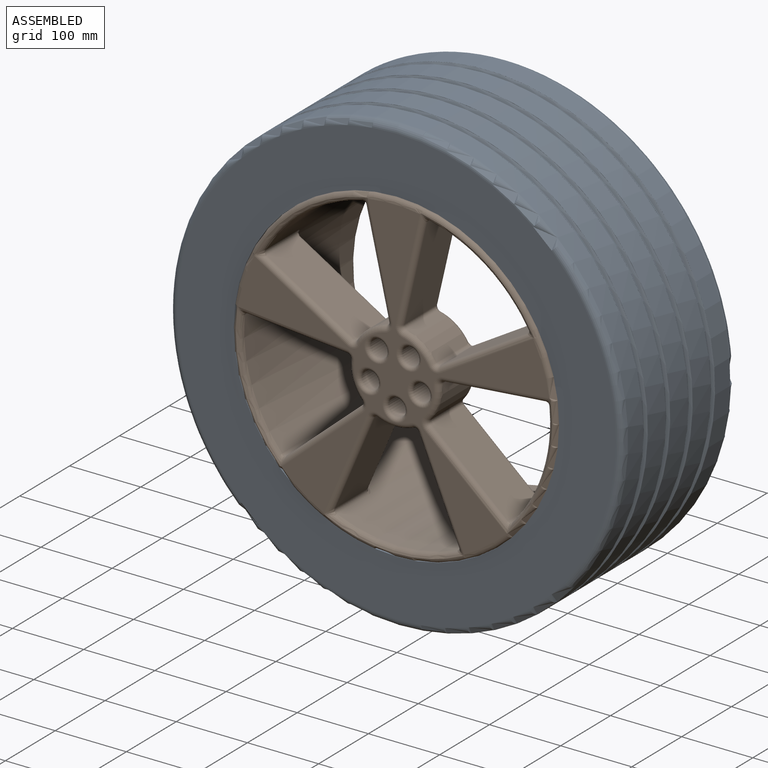
[diagram: assembled view]
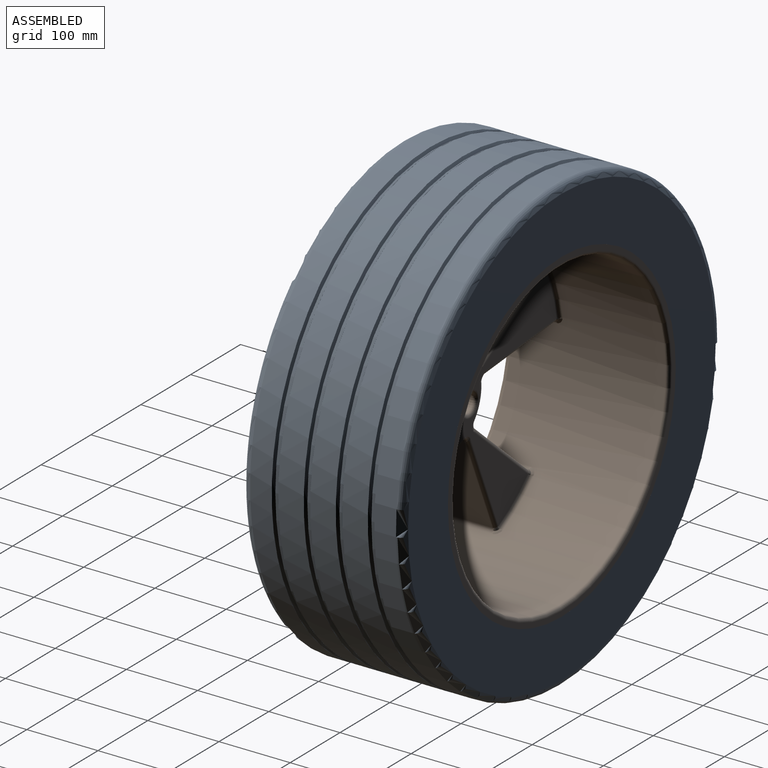
[diagram: assembled view, second angle]
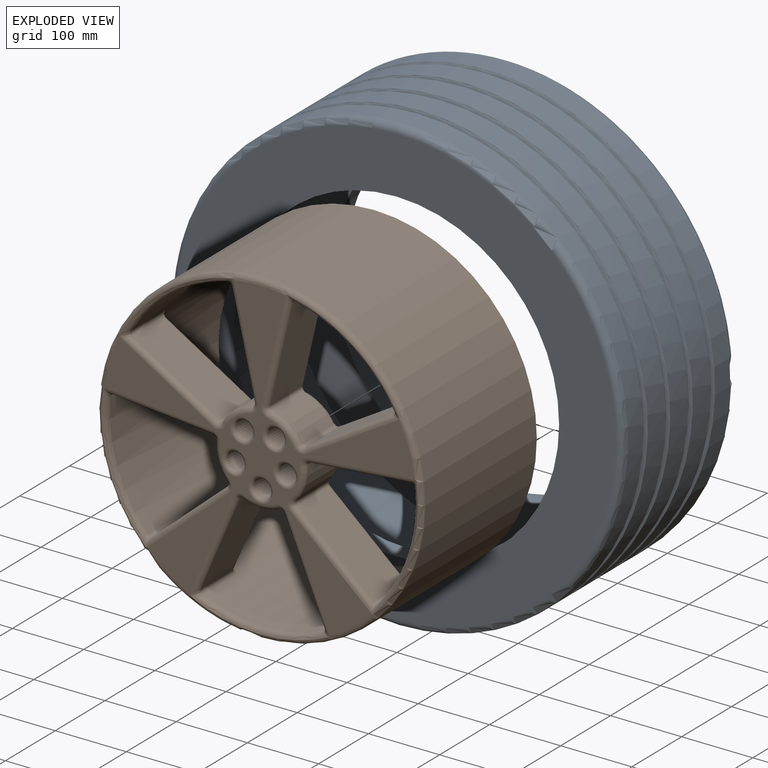
[diagram: exploded view]
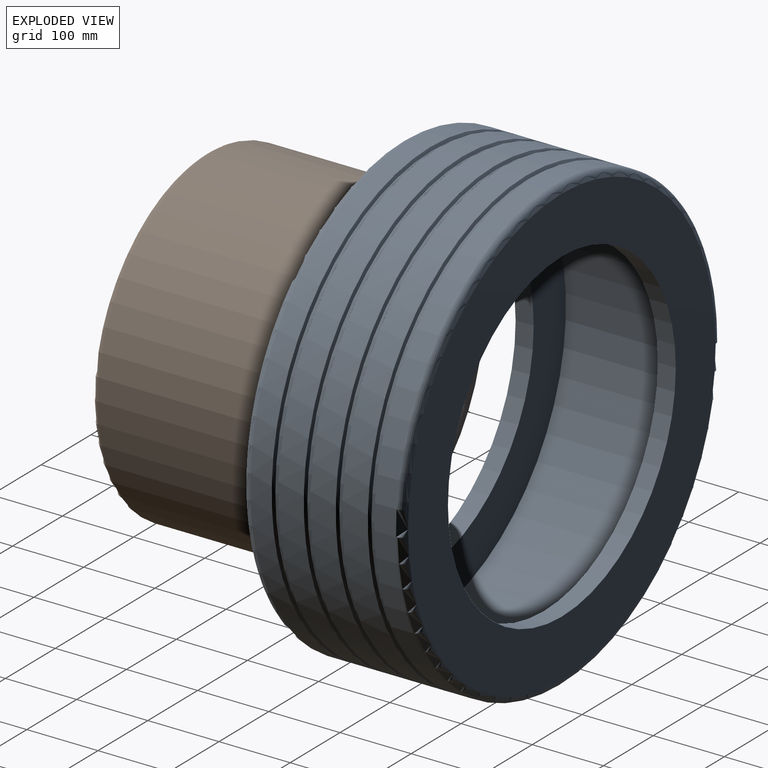
[diagram: exploded view, second angle]
ASSEMBLY  parts=2 mates=2
PART A: 34 faces, bbox 689.7x225x689.7 mm
  f0: cylinder r=318.6mm len=637.2mm, axis (0,1,0), area 60987.1mm2, adj f7,f30
  f1: cylinder r=318.6mm len=637.2mm, axis (0,1,0), area 60934.2mm2, adj f6,f12
  f2: cylinder r=228.6mm len=457.2mm, axis (0,1,0), area 36482.9mm2, adj f5,f10
  f3: cylinder r=228.6mm len=457.2mm, axis (0,1,0), area 36482.9mm2, adj f4,f9
  f4: plane 617.2x617.2mm, normal (0,-1,0), area 135013.1mm2, adj f3,f7
  f5: plane 617.2x617.2mm, normal (0,1,0), area 135013.1mm2, adj f2,f6
  f6: torus R=308.6mm, axis (0,-1,0), area 31085.9mm2, adj f1,f5
  f7: torus R=308.6mm, axis (0,-1,0), area 31085.9mm2, adj f0,f4
  f8: cylinder r=293.2mm len=586.4mm, axis (0,1,0), area 320916.5mm2, adj f9,f10
  f9: plane 586.4x586.4mm, normal (0,1,0), area 105897.7mm2, adj f3,f8
  f10: plane 586.4x586.4mm, normal (0,-1,0), area 105897.7mm2, adj f2,f8
  f11: cone r=322.48mm half-angle=60deg, axis (0,1,0), area 194.1mm2, adj f13,f16
  f12: cone r=318.52mm half-angle=60deg, axis (0,-1,0), area 194.1mm2, adj f1,f14
  f13: cone r=318.52mm half-angle=60deg, axis (0,-1,0), area 9114.2mm2, adj f11,f15
  f14: cone r=314.55mm half-angle=60deg, axis (0,1,0), area 9114.2mm2, adj f12,f15
  f15: cylinder r=314.55mm len=629.09mm, axis (0,-1,0), area 9057.1mm2, adj f13,f14
  f16: cylinder r=318.6mm len=637.2mm, axis (0,1,0), area 71946.2mm2, adj f11,f18
  f17: cone r=322.48mm half-angle=60deg, axis (0,1,0), area 194.1mm2, adj f19,f22
  f18: cone r=318.52mm half-angle=60deg, axis (0,-1,0), area 194.1mm2, adj f16,f20
  f19: cone r=318.52mm half-angle=60deg, axis (0,-1,0), area 9114.2mm2, adj f17,f21
  f20: cone r=314.55mm half-angle=60deg, axis (0,1,0), area 9114.2mm2, adj f18,f21
  f21: cylinder r=314.55mm len=629.09mm, axis (0,-1,0), area 9057.1mm2, adj f19,f20
  f22: cylinder r=318.6mm len=637.2mm, axis (0,1,0), area 71946.2mm2, adj f17,f24
  f23: cone r=322.48mm half-angle=60deg, axis (0,1,0), area 194.1mm2, adj f25,f28
  f24: cone r=318.52mm half-angle=60deg, axis (0,-1,0), area 194.1mm2, adj f22,f26
  f25: cone r=318.52mm half-angle=60deg, axis (0,-1,0), area 9114.2mm2, adj f23,f27
  f26: cone r=314.55mm half-angle=60deg, axis (0,1,0), area 9114.2mm2, adj f24,f27
  f27: cylinder r=314.55mm len=629.09mm, axis (0,-1,0), area 9057.1mm2, adj f25,f26
  f28: cylinder r=318.6mm len=637.2mm, axis (0,1,0), area 71946.2mm2, adj f23,f29
  f29: cone r=318.52mm half-angle=60deg, axis (0,-1,0), area 194.1mm2, adj f28,f31
  f30: cone r=322.48mm half-angle=60deg, axis (0,1,0), area 194.1mm2, adj f0,f33
  f31: cone r=314.55mm half-angle=60deg, axis (0,1,0), area 9114.2mm2, adj f29,f32
  f32: cylinder r=314.55mm len=629.09mm, axis (0,-1,0), area 9057.1mm2, adj f31,f33
  f33: cone r=318.52mm half-angle=60deg, axis (0,-1,0), area 9114.2mm2, adj f30,f32
PART B: 147 faces, bbox 501.3x236.4x501.3 mm
  f0: cylinder r=215.9mm len=431.8mm, axis (0,-1,0), area 259846.4mm2, adj f70,f73,f76,f79,f83,f89,f91,f93
  f1: cylinder r=228.6mm len=457.2mm, axis (0,-1,0), area 319412.4mm2, adj f2,f82
  f2: plane 457.2x457.2mm, normal (0,1,0), area 10762.5mm2, adj f1,f146
  f3: plane 437.09x418.72mm, normal (0,-1,0), area 34908.4mm2, adj f25,f26,f27,f28,f29,f30,f31,f32
  f4: plane 138.9x63.5mm, normal (-0.97,0,-0.22), area 9032.5mm2, adj f42,f43,f81,f121,f122
  f5: cylinder r=63.5mm len=60.96mm, axis (0,-1,0), area 3177.1mm2, adj f34,f39,f40,f42
  f6: plane 122.26x73.21mm, normal (0.51,0,0.86), area 9032.5mm2, adj f40,f41,f84,f132,f133
  f7: plane 141.94x63.5mm, normal (-0.09,0,-1), area 9032.5mm2, adj f46,f47,f69,f136,f139
  f8: cylinder r=63.5mm len=60.96mm, axis (0,-1,0), area 3177.1mm2, adj f33,f38,f44,f46
  f9: plane 107.41x93.65mm, normal (-0.66,0,0.75), area 9032.5mm2, adj f44,f45,f71,f110,f111
  f10: plane 131.09x63.5mm, normal (0.92,0,-0.39), area 9032.5mm2, adj f54,f55,f72,f114,f117
  f11: cylinder r=63.5mm len=60.96mm, axis (0,-1,0), area 3177.1mm2, adj f31,f36,f52,f54
  f12: plane 131.09x63.5mm, normal (-0.92,0,-0.39), area 9032.5mm2, adj f52,f53,f74,f88,f89
  f13: plane 107.41x93.65mm, normal (0.66,0,0.75), area 9032.5mm2, adj f58,f59,f75,f92,f95
  f14: cylinder r=63.5mm len=60.96mm, axis (0,-1,0), area 3177.1mm2, adj f30,f35,f56,f58
  f15: plane 141.94x63.5mm, normal (0.09,0,-1), area 9032.5mm2, adj f56,f57,f77,f104,f106
  f16: plane 122.26x73.21mm, normal (-0.51,0,0.86), area 9032.5mm2, adj f50,f51,f78,f99,f100
  f17: cylinder r=63.5mm len=60.96mm, axis (0,-1,0), area 3177.1mm2, adj f32,f37,f48,f50
  f18: plane 138.9x63.5mm, normal (0.97,0,-0.22), area 9032.5mm2, adj f48,f49,f80,f126,f128
  f19: plane 424x406.77mm, normal (0,1,0), area 35256.6mm2, adj f35,f36,f37,f38,f39,f86,f88,f90
  f20: cylinder r=12.7mm len=66.04mm, axis (0,-1,0), area 5269.8mm2, adj f29,f145
  f21: cylinder r=12.7mm len=66.04mm, axis (0,-1,0), area 5269.8mm2, adj f28,f144
  f22: cylinder r=12.7mm len=66.04mm, axis (0,-1,0), area 5269.8mm2, adj f27,f143
  f23: cylinder r=12.7mm len=66.04mm, axis (0,-1,0), area 5269.8mm2, adj f26,f142
  f24: cylinder r=12.7mm len=66.04mm, axis (0,-1,0), area 5269.8mm2, adj f25,f141
  f25: torus R=17.78mm, axis (0,-1,0), area 729.3mm2, adj f3,f24
  f26: torus R=17.78mm, axis (0,-1,0), area 729.3mm2, adj f3,f23
  f27: torus R=17.78mm, axis (0,-1,0), area 729.3mm2, adj f3,f22
  f28: torus R=17.78mm, axis (0,-1,0), area 729.3mm2, adj f3,f21
  f29: torus R=17.78mm, axis (0,-1,0), area 729.3mm2, adj f3,f20
  f30: torus R=55.88mm, axis (0,-1,0), area 596.6mm2, adj f3,f14,f64,f65
  f31: torus R=55.88mm, axis (0,-1,0), area 596.6mm2, adj f3,f11,f62,f63
  f32: torus R=55.88mm, axis (0,-1,0), area 596.6mm2, adj f3,f17,f66,f67
  f33: torus R=55.88mm, axis (0,-1,0), area 596.6mm2, adj f3,f8,f60,f61
  f34: torus R=55.88mm, axis (0,-1,0), area 596.6mm2, adj f3,f5,f68,f85
  f35: torus R=55.88mm, axis (0,-1,0), area 597.8mm2, adj f14,f19,f57,f59
  f36: torus R=55.88mm, axis (0,-1,0), area 597.8mm2, adj f11,f19,f53,f55
  f37: torus R=55.88mm, axis (0,-1,0), area 597.8mm2, adj f17,f19,f49,f51
  f38: torus R=55.88mm, axis (0,-1,0), area 597.8mm2, adj f8,f19,f45,f47
  f39: torus R=55.88mm, axis (0,-1,0), area 597.8mm2, adj f5,f19,f41,f43
  f40: cylinder r=5.08mm len=60.96mm, axis (0,-1,0), area 488.7mm2, adj f5,f6,f41,f85
  f41: bspline ~14.48x13.89mm, area 42.8mm2, adj f6,f39,f40,f130
  f42: cylinder r=5.08mm len=60.96mm, axis (0,-1,0), area 488.7mm2, adj f4,f5,f43,f68
  f43: bspline ~14.48x13.96mm, area 42.8mm2, adj f4,f39,f42,f120
  f44: cylinder r=5.08mm len=60.96mm, axis (0,-1,0), area 488.7mm2, adj f8,f9,f45,f61
  f45: bspline ~14.48x12.47mm, area 42.8mm2, adj f9,f38,f44,f108
  f46: cylinder r=5.08mm len=60.96mm, axis (0,-1,0), area 488.7mm2, adj f7,f8,f47,f60
  f47: bspline ~14.48x13.4mm, area 42.8mm2, adj f7,f38,f46,f134
  f48: cylinder r=5.08mm len=60.96mm, axis (0,-1,0), area 488.7mm2, adj f17,f18,f49,f67
  f49: bspline ~14.48x13.96mm, area 42.8mm2, adj f18,f37,f48,f124
  f50: cylinder r=5.08mm len=60.96mm, axis (0,-1,0), area 488.7mm2, adj f16,f17,f51,f66
  f51: bspline ~14.48x13.89mm, area 42.8mm2, adj f16,f37,f50,f98
  f52: cylinder r=5.08mm len=60.96mm, axis (0,-1,0), area 488.7mm2, adj f11,f12,f53,f63
  f53: bspline ~14.48x12.38mm, area 42.8mm2, adj f12,f36,f52,f86
  f54: cylinder r=5.08mm len=60.96mm, axis (0,-1,0), area 488.7mm2, adj f10,f11,f55,f62
  f55: bspline ~14.48x12.38mm, area 42.8mm2, adj f10,f36,f54,f112
  f56: cylinder r=5.08mm len=60.96mm, axis (0,-1,0), area 488.7mm2, adj f14,f15,f57,f65
  f57: bspline ~14.48x13.4mm, area 42.8mm2, adj f15,f35,f56,f102
  f58: cylinder r=5.08mm len=60.96mm, axis (0,-1,0), area 488.7mm2, adj f13,f14,f59,f64
  f59: bspline ~14.48x12.47mm, area 42.8mm2, adj f13,f35,f58,f90
  f60: torus R=12.7mm, axis (0,-1,0), area 148.3mm2, adj f3,f33,f46,f69
  f61: torus R=12.7mm, axis (0,-1,0), area 148.3mm2, adj f3,f33,f44,f71
  f62: torus R=12.7mm, axis (0,-1,0), area 148.3mm2, adj f3,f31,f54,f72
  f63: torus R=12.7mm, axis (0,-1,0), area 148.3mm2, adj f3,f31,f52,f74
  f64: torus R=12.7mm, axis (0,-1,0), area 148.3mm2, adj f3,f30,f58,f75
  f65: torus R=12.7mm, axis (0,-1,0), area 148.3mm2, adj f3,f30,f56,f77
  f66: torus R=12.7mm, axis (0,-1,0), area 148.3mm2, adj f3,f32,f50,f78
  f67: torus R=12.7mm, axis (0,-1,0), area 148.3mm2, adj f3,f32,f48,f80
  f68: torus R=12.7mm, axis (0,-1,0), area 148.3mm2, adj f3,f34,f42,f81
  f69: cylinder r=7.62mm len=153.1mm, axis (1,0,-0.09), area 1755.4mm2, adj f3,f7,f60,f82,f140
  f70: torus R=223.52mm, axis (0,-1,0), area 2003.2mm2, adj f0,f82,f109,f140
  f71: cylinder r=7.62mm len=120.35mm, axis (-0.75,0,-0.66), area 1755.4mm2, adj f3,f9,f61,f82,f109
  f72: cylinder r=7.62mm len=143.76mm, axis (0.39,0,0.92), area 1755.4mm2, adj f3,f10,f62,f82,f118
  f73: torus R=223.52mm, axis (0,-1,0), area 2003.2mm2, adj f0,f82,f87,f118
  f74: cylinder r=7.62mm len=143.76mm, axis (0.39,0,-0.92), area 1755.4mm2, adj f3,f12,f63,f82,f87
  f75: cylinder r=7.62mm len=120.35mm, axis (-0.75,0,0.66), area 1755.4mm2, adj f3,f13,f64,f82,f96
  f76: torus R=223.52mm, axis (0,-1,0), area 2003.2mm2, adj f0,f82,f96,f107
  f77: cylinder r=7.62mm len=153.1mm, axis (1,0,0.09), area 1755.4mm2, adj f3,f15,f65,f82,f107
  f78: cylinder r=7.62mm len=135.21mm, axis (-0.86,0,-0.51), area 1755.4mm2, adj f3,f16,f66,f82,f97
  f79: torus R=223.52mm, axis (0,-1,0), area 2003.2mm2, adj f0,f82,f97,f129
  f80: cylinder r=7.62mm len=150.86mm, axis (0.22,0,0.97), area 1755.4mm2, adj f3,f18,f67,f82,f129
  f81: cylinder r=7.62mm len=150.86mm, axis (0.22,0,-0.97), area 1755.4mm2, adj f3,f4,f68,f82,f119
  f82: torus R=220.98mm, axis (0,-1,0), area 15685.3mm2, adj f1,f3,f69,f70,f71,f72,f73,f74
  f83: torus R=223.52mm, axis (0,-1,0), area 2003.2mm2, adj f0,f82,f119,f131
  f84: cylinder r=7.62mm len=135.21mm, axis (-0.86,0,0.51), area 1755.4mm2, adj f3,f6,f82,f85,f131
  f85: torus R=12.7mm, axis (0,-1,0), area 148.3mm2, adj f3,f34,f40,f84
  f86: bspline ~14.23x9.46mm, area 39.8mm2, adj f19,f53,f88
  f87: bspline ~13.61x8.23mm, area 68.8mm2, adj f73,f74,f82,f89
  f88: cylinder r=5.08mm len=133.08mm, axis (-0.39,0,0.92), area 1136mm2, adj f12,f19,f86,f91
  f89: cylinder r=5.08mm len=63.5mm, axis (0,-1,0), area 505.9mm2, adj f0,f12,f87,f91
  f90: bspline ~17.18x8.26mm, area 45.7mm2, adj f19,f59,f92
  f91: bspline ~11.06x10.75mm, area 87.5mm2, adj f0,f88,f89,f93
  f92: cylinder r=5.08mm len=110.74mm, axis (0.75,0,-0.66), area 1136mm2, adj f13,f19,f90,f94
  f93: torus R=210.82mm, axis (0,-1,0), area 597mm2, adj f0,f19,f91,f94
  f94: bspline ~11.9x11.55mm, area 87.5mm2, adj f0,f92,f93,f95
  f95: cylinder r=5.08mm len=63.5mm, axis (0,-1,0), area 505.9mm2, adj f0,f13,f94,f96
  f96: bspline ~13.27x8.15mm, area 68.8mm2, adj f75,f76,f82,f95
  f97: bspline ~13.53x8.15mm, area 68.8mm2, adj f78,f79,f82,f99
  f98: bspline ~17.76x6.78mm, area 45.7mm2, adj f19,f51,f100
  f99: cylinder r=5.08mm len=63.5mm, axis (0,-1,0), area 505.9mm2, adj f0,f16,f97,f101
  f100: cylinder r=5.08mm len=124.86mm, axis (0.86,0,0.51), area 1136mm2, adj f16,f19,f98,f101
  f101: bspline ~12.51x11.9mm, area 87.5mm2, adj f0,f99,f100,f103
  f102: bspline ~11.94x11.22mm, area 39.8mm2, adj f19,f57,f104
  f103: torus R=210.82mm, axis (0,-1,0), area 597mm2, adj f0,f19,f101,f105
  f104: cylinder r=5.08mm len=142.39mm, axis (-1,0,-0.09), area 1136mm2, adj f15,f19,f102,f105
  f105: bspline ~12.1x10.75mm, area 87.5mm2, adj f0,f103,f104,f106
  f106: cylinder r=5.08mm len=63.5mm, axis (0,-1,0), area 505.9mm2, adj f0,f15,f105,f107
  f107: bspline ~12.62x11.15mm, area 68.8mm2, adj f76,f77,f82,f106
  f108: bspline ~15.84x7.18mm, area 39.8mm2, adj f19,f45,f110
  f109: bspline ~13.27x8.15mm, area 68.8mm2, adj f70,f71,f82,f111
  f110: cylinder r=5.08mm len=110.74mm, axis (0.75,0,0.66), area 1136mm2, adj f9,f19,f108,f113
  f111: cylinder r=5.08mm len=63.5mm, axis (0,-1,0), area 505.9mm2, adj f0,f9,f109,f113
  f112: bspline ~14.23x9.46mm, area 45.7mm2, adj f19,f55,f114
  f113: bspline ~11.34x10.75mm, area 87.5mm2, adj f0,f110,f111,f115
  f114: cylinder r=5.08mm len=133.08mm, axis (-0.39,0,-0.92), area 1136mm2, adj f10,f19,f112,f116
  f115: torus R=210.82mm, axis (0,-1,0), area 597mm2, adj f0,f19,f113,f116
  f116: bspline ~11.9x11.57mm, area 87.5mm2, adj f0,f114,f115,f117
  f117: cylinder r=5.08mm len=63.5mm, axis (0,-1,0), area 505.9mm2, adj f0,f10,f116,f118
  f118: bspline ~13.61x8.23mm, area 68.8mm2, adj f72,f73,f82,f117
  f119: bspline ~12.98x10.39mm, area 68.8mm2, adj f81,f82,f83,f121
  f120: bspline ~14.97x7.4mm, area 45.7mm2, adj f19,f43,f122
  f121: cylinder r=5.08mm len=63.5mm, axis (0,-1,0), area 505.9mm2, adj f0,f4,f119,f123
  f122: cylinder r=5.08mm len=140.03mm, axis (-0.22,0,0.97), area 1136mm2, adj f4,f19,f120,f123
  f123: bspline ~11.9x11.39mm, area 87.5mm2, adj f0,f121,f122,f125
  f124: bspline ~14.4x7.39mm, area 39.8mm2, adj f19,f49,f126
  f125: torus R=210.82mm, axis (0,-1,0), area 597mm2, adj f0,f19,f123,f127
  f126: cylinder r=5.08mm len=140.03mm, axis (-0.22,0,-0.97), area 1136mm2, adj f18,f19,f124,f127
  f127: bspline ~11.96x10.75mm, area 87.5mm2, adj f0,f125,f126,f128
  f128: cylinder r=5.08mm len=63.5mm, axis (0,-1,0), area 505.9mm2, adj f0,f18,f127,f129
  f129: bspline ~12.98x10.39mm, area 68.8mm2, adj f79,f80,f82,f128
  f130: bspline ~17.76x6.78mm, area 39.8mm2, adj f19,f41,f132
  f131: bspline ~13.53x8.15mm, area 68.8mm2, adj f82,f83,f84,f133
  f132: cylinder r=5.08mm len=124.86mm, axis (0.86,0,-0.51), area 1136mm2, adj f6,f19,f130,f135
  f133: cylinder r=5.08mm len=63.5mm, axis (0,-1,0), area 505.9mm2, adj f0,f6,f131,f135
  f134: bspline ~11.94x11.22mm, area 45.7mm2, adj f19,f47,f136
  f135: bspline ~12.25x10.75mm, area 87.5mm2, adj f0,f132,f133,f137
  f136: cylinder r=5.08mm len=142.39mm, axis (-1,0,0.09), area 1136mm2, adj f7,f19,f134,f138
  f137: torus R=210.82mm, axis (0,-1,0), area 597mm2, adj f0,f19,f135,f138
  f138: bspline ~12.66x11.9mm, area 87.5mm2, adj f0,f136,f137,f139
  f139: cylinder r=5.08mm len=63.5mm, axis (0,-1,0), area 505.9mm2, adj f0,f7,f138,f140
  f140: bspline ~12.62x11.15mm, area 68.8mm2, adj f69,f70,f82,f139
  f141: torus R=17.78mm, axis (0,-1,0), area 729.3mm2, adj f19,f24
  f142: torus R=17.78mm, axis (0,-1,0), area 729.3mm2, adj f19,f23
  f143: torus R=17.78mm, axis (0,-1,0), area 729.3mm2, adj f19,f22
  f144: torus R=17.78mm, axis (0,-1,0), area 729.3mm2, adj f19,f21
  f145: torus R=17.78mm, axis (0,-1,0), area 729.3mm2, adj f19,f20
  f146: torus R=220.98mm, axis (0,-1,0), area 10917.3mm2, adj f0,f2
PLACE A t=(177.58,255.99,63.41)mm
PLACE B t=(177.58,25.99,63.41)mm fixed
MATE planar A.f0 <-> B.f8  axis (0,1,0) through (177.58,255.99,63.41)mm
MATE slider A.f2 <-> B.f1  axis (0,-1,0) through (177.58,30.99,63.41)mm
